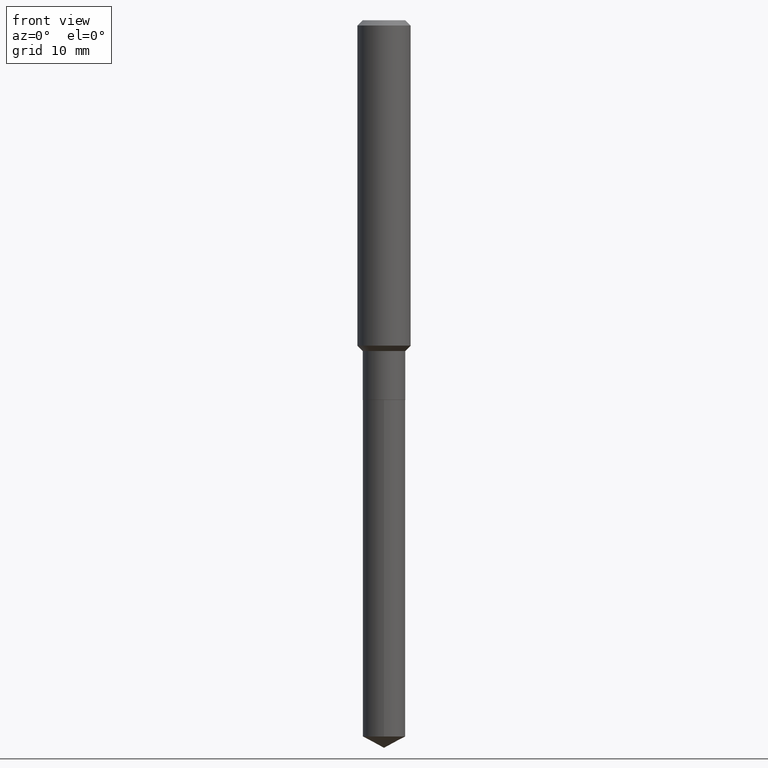
[diagram: clean part render]
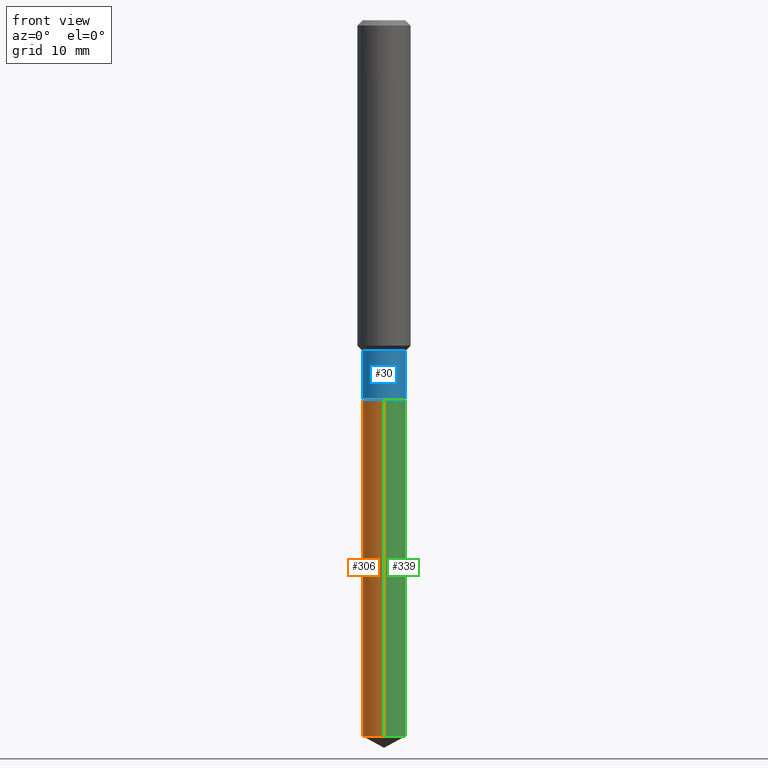
[diagram: same view with three faces highlighted in distinct colors, each labeled with its STEP entity id]
A machine part, front view with three faces highlighted in distinct colors.
Their STEP definitions:

[orange] entity #306 — the highlighted cylindrical surface (edge-blend (fillet) strip) has radius 2.4003 mm, axis along (-0, 0, 1).
#9 = ORIENTED_EDGE ( 'NONE', *, *, #201, .F. ) ;
#18 = VECTOR ( 'NONE', #355, 39.37007874015748143 ) ;
#28 = CARTESIAN_POINT ( 'NONE',  ( 7.771783973672636712E-29, -1.109618111312725859E-14, -3.178053458707990497 ) ) ;
#36 = EDGE_LOOP ( 'NONE', ( #9, #342, #344, #387 ) ) ;
#63 = EDGE_CURVE ( 'NONE', #81, #406, #270, .T. ) ;
#68 = CARTESIAN_POINT ( 'NONE',  ( 4.120614938421955681E-29, -5.883146055950701318E-15, -1.685000000000000275 ) ) ;
#81 = VERTEX_POINT ( 'NONE', #485 ) ;
#110 = VERTEX_POINT ( 'NONE', #254 ) ;
#121 = CARTESIAN_POINT ( 'NONE',  ( -6.598899730413107968E-16, -0.09450000000000588485, -1.684999999999999831 ) ) ;
#128 = AXIS2_PLACEMENT_3D ( 'NONE', #417, #297, #188 ) ;
#142 = FACE_OUTER_BOUND ( 'NONE', #36, .T. ) ;
#178 = EDGE_CURVE ( 'NONE', #308, #406, #242, .T. ) ;
#188 = DIRECTION ( 'NONE',  ( -6.982962677686265922E-15, -1.000000000000000000, 2.890844437739961472E-15 ) ) ;
#193 = DIRECTION ( 'NONE',  ( -2.445437578913088884E-29, 3.491526058074064807E-15, 1.000000000000000000 ) ) ;
#201 = EDGE_CURVE ( 'NONE', #110, #81, #478, .T. ) ;
#205 = CIRCLE ( 'NONE', #225, 0.09449999999999998679 ) ;
#214 = DIRECTION ( 'NONE',  ( -6.982962677686265922E-15, -1.000000000000000000, 2.890844437739961472E-15 ) ) ;
#221 = CARTESIAN_POINT ( 'NONE',  ( -6.598899730413107968E-16, -0.09450000000000588485, -1.684999999999999831 ) ) ;
#225 = AXIS2_PLACEMENT_3D ( 'NONE', #28, #292, #253 ) ;
#242 = LINE ( 'NONE', #121, #346 ) ;
#253 = DIRECTION ( 'NONE',  ( -6.982962677686265922E-15, -1.000000000000000000, 5.781688875479922944E-15 ) ) ;
#254 = CARTESIAN_POINT ( 'NONE',  ( 6.714628852933723832E-16, 0.09449999999998892619, -3.178053458707990941 ) ) ;
#268 = EDGE_CURVE ( 'NONE', #110, #308, #205, .T. ) ;
#270 = CIRCLE ( 'NONE', #455, 0.09449999999999998679 ) ;
#292 = DIRECTION ( 'NONE',  ( -2.445437578913088603E-29, 3.491526058074064413E-15, 1.000000000000000000 ) ) ;
#297 = DIRECTION ( 'NONE',  ( -2.445437578913088603E-29, 3.491526058074064413E-15, 1.000000000000000000 ) ) ;
#299 = DIRECTION ( 'NONE',  ( -2.445437578913088603E-29, 3.491526058074064413E-15, 1.000000000000000000 ) ) ;
#306 = ADVANCED_FACE ( 'NONE', ( #142 ), #373, .T. ) ;
#308 = VERTEX_POINT ( 'NONE', #407 ) ;
#342 = ORIENTED_EDGE ( 'NONE', *, *, #268, .T. ) ;
#344 = ORIENTED_EDGE ( 'NONE', *, *, #178, .T. ) ;
#346 = VECTOR ( 'NONE', #193, 39.37007874015748143 ) ;
#355 = DIRECTION ( 'NONE',  ( -2.445437578913088884E-29, 3.491526058074064807E-15, 1.000000000000000000 ) ) ;
#373 = CYLINDRICAL_SURFACE ( 'NONE', #128, 0.09449999999999998679 ) ;
#387 = ORIENTED_EDGE ( 'NONE', *, *, #63, .F. ) ;
#406 = VERTEX_POINT ( 'NONE', #221 ) ;
#407 = CARTESIAN_POINT ( 'NONE',  ( -6.598899730412745092E-16, -0.09450000000001110290, -3.178053458707990053 ) ) ;
#417 = CARTESIAN_POINT ( 'NONE',  ( 4.120614938421955681E-29, -5.883146055950701318E-15, -1.685000000000000275 ) ) ;
#436 = CARTESIAN_POINT ( 'NONE',  ( 6.714628852933357011E-16, 0.09449999999999410261, -1.685000000000000497 ) ) ;
#455 = AXIS2_PLACEMENT_3D ( 'NONE', #68, #299, #214 ) ;
#478 = LINE ( 'NONE', #436, #18 ) ;
#485 = CARTESIAN_POINT ( 'NONE',  ( 6.714628852933723832E-16, 0.09449999999999410261, -1.685000000000000497 ) ) ;

[blue] entity #30 — the highlighted cylindrical surface (edge-blend (fillet) strip) has radius 2.4003 mm, axis along (-0, 0, 1).
#21 = FACE_OUTER_BOUND ( 'NONE', #471, .T. ) ;
#30 = ADVANCED_FACE ( 'NONE', ( #21 ), #243, .T. ) ;
#73 = CARTESIAN_POINT ( 'NONE',  ( -0.09449999999999998679, -4.831286278790446219E-15, -1.684500000000000330 ) ) ;
#78 = VERTEX_POINT ( 'NONE', #73 ) ;
#97 = CARTESIAN_POINT ( 'NONE',  ( 0.09449999999999995903, -5.783987985927553605E-15, -1.467600000000000238 ) ) ;
#104 = EDGE_CURVE ( 'NONE', #314, #234, #204, .T. ) ;
#105 = CARTESIAN_POINT ( 'NONE',  ( -0.09449999999999995903, -4.831286278790446219E-15, -1.467600000000000238 ) ) ;
#111 = CARTESIAN_POINT ( 'NONE',  ( -0.09449999999999997291, 6.714628852932944832E-16, -4.648393660290884930E-30 ) ) ;
#117 = VECTOR ( 'NONE', #148, 39.37007874015748143 ) ;
#148 = DIRECTION ( 'NONE',  ( -2.445468806185136877E-29, 3.491481338843145188E-15, 1.000000000000000000 ) ) ;
#154 = DIRECTION ( 'NONE',  ( 1.000000000000000000, -6.982962677686266711E-15, 0.000000000000000000 ) ) ;
#165 = CARTESIAN_POINT ( 'NONE',  ( 0.000000000000000000, 0.000000000000000000, 0.000000000000000000 ) ) ;
#183 = DIRECTION ( 'NONE',  ( -2.445468806185136877E-29, 3.491481338843145188E-15, 1.000000000000000000 ) ) ;
#204 = CIRCLE ( 'NONE', #354, 0.09449999999999995903 ) ;
#209 = CARTESIAN_POINT ( 'NONE',  ( 3.588970019957307278E-29, -5.124098012886201590E-15, -1.467600000000000238 ) ) ;
#211 = DIRECTION ( 'NONE',  ( 1.000000000000000000, -6.982962677686266711E-15, 4.876176775795935793E-29 ) ) ;
#213 = LINE ( 'NONE', #489, #117 ) ;
#220 = CARTESIAN_POINT ( 'NONE',  ( 0.09449999999999998679, -6.541290288322631830E-15, -1.684500000000000330 ) ) ;
#226 = ORIENTED_EDGE ( 'NONE', *, *, #374, .T. ) ;
#234 = VERTEX_POINT ( 'NONE', #97 ) ;
#235 = CARTESIAN_POINT ( 'NONE',  ( 4.119392204018863440E-29, -5.881400315281279815E-15, -1.684500000000000330 ) ) ;
#243 = CYLINDRICAL_SURFACE ( 'NONE', #484, 0.09449999999999997291 ) ;
#256 = CIRCLE ( 'NONE', #303, 0.09449999999999998679 ) ;
#273 = ORIENTED_EDGE ( 'NONE', *, *, #402, .F. ) ;
#281 = DIRECTION ( 'NONE',  ( -2.445468806185136597E-29, 3.491481338843145583E-15, 1.000000000000000000 ) ) ;
#303 = AXIS2_PLACEMENT_3D ( 'NONE', #235, #281, #154 ) ;
#314 = VERTEX_POINT ( 'NONE', #105 ) ;
#319 = VERTEX_POINT ( 'NONE', #220 ) ;
#343 = ORIENTED_EDGE ( 'NONE', *, *, #104, .F. ) ;
#354 = AXIS2_PLACEMENT_3D ( 'NONE', #209, #479, #440 ) ;
#374 = EDGE_CURVE ( 'NONE', #319, #234, #213, .T. ) ;
#402 = EDGE_CURVE ( 'NONE', #78, #314, #450, .T. ) ;
#425 = ORIENTED_EDGE ( 'NONE', *, *, #473, .T. ) ;
#440 = DIRECTION ( 'NONE',  ( 1.000000000000000000, -6.982962677686269077E-15, 0.000000000000000000 ) ) ;
#449 = VECTOR ( 'NONE', #183, 39.37007874015748143 ) ;
#450 = LINE ( 'NONE', #111, #449 ) ;
#462 = DIRECTION ( 'NONE',  ( -2.445468806185136597E-29, 3.491481338843145583E-15, 1.000000000000000000 ) ) ;
#471 = EDGE_LOOP ( 'NONE', ( #273, #425, #226, #343 ) ) ;
#473 = EDGE_CURVE ( 'NONE', #78, #319, #256, .T. ) ;
#479 = DIRECTION ( 'NONE',  ( -2.445468806185136597E-29, 3.491481338843145583E-15, 1.000000000000000000 ) ) ;
#484 = AXIS2_PLACEMENT_3D ( 'NONE', #165, #462, #211 ) ;
#489 = CARTESIAN_POINT ( 'NONE',  ( 0.09449999999999997291, -6.598899730413520148E-16, 4.607987053127158259E-30 ) ) ;

[green] entity #339 — the highlighted cylindrical surface (edge-blend (fillet) strip) has radius 2.4003 mm, axis along (-0, 0, 1).
#10 = ORIENTED_EDGE ( 'NONE', *, *, #124, .F. ) ;
#18 = VECTOR ( 'NONE', #355, 39.37007874015748143 ) ;
#27 = CIRCLE ( 'NONE', #246, 0.09449999999999998679 ) ;
#32 = DIRECTION ( 'NONE',  ( -2.445437578913088603E-29, 3.491526058074064413E-15, 1.000000000000000000 ) ) ;
#58 = CIRCLE ( 'NONE', #490, 0.09449999999999998679 ) ;
#81 = VERTEX_POINT ( 'NONE', #485 ) ;
#84 = CARTESIAN_POINT ( 'NONE',  ( 7.771783973672636712E-29, -1.109618111312725859E-14, -3.178053458707990497 ) ) ;
#110 = VERTEX_POINT ( 'NONE', #254 ) ;
#121 = CARTESIAN_POINT ( 'NONE',  ( -6.598899730413107968E-16, -0.09450000000000588485, -1.684999999999999831 ) ) ;
#124 = EDGE_CURVE ( 'NONE', #406, #81, #27, .T. ) ;
#143 = EDGE_CURVE ( 'NONE', #308, #110, #58, .T. ) ;
#156 = ORIENTED_EDGE ( 'NONE', *, *, #178, .F. ) ;
#164 = DIRECTION ( 'NONE',  ( -6.982962677686265922E-15, -1.000000000000000000, 2.890844437739961472E-15 ) ) ;
#178 = EDGE_CURVE ( 'NONE', #308, #406, #242, .T. ) ;
#186 = CARTESIAN_POINT ( 'NONE',  ( 4.120614938421955681E-29, -5.883146055950701318E-15, -1.685000000000000275 ) ) ;
#193 = DIRECTION ( 'NONE',  ( -2.445437578913088884E-29, 3.491526058074064807E-15, 1.000000000000000000 ) ) ;
#201 = EDGE_CURVE ( 'NONE', #110, #81, #478, .T. ) ;
#216 = CYLINDRICAL_SURFACE ( 'NONE', #377, 0.09449999999999998679 ) ;
#221 = CARTESIAN_POINT ( 'NONE',  ( -6.598899730413107968E-16, -0.09450000000000588485, -1.684999999999999831 ) ) ;
#232 = DIRECTION ( 'NONE',  ( -6.982962677686265922E-15, -1.000000000000000000, 5.781688875479922944E-15 ) ) ;
#236 = DIRECTION ( 'NONE',  ( -2.445437578913088603E-29, 3.491526058074064413E-15, 1.000000000000000000 ) ) ;
#242 = LINE ( 'NONE', #121, #346 ) ;
#246 = AXIS2_PLACEMENT_3D ( 'NONE', #362, #32, #164 ) ;
#254 = CARTESIAN_POINT ( 'NONE',  ( 6.714628852933723832E-16, 0.09449999999998892619, -3.178053458707990941 ) ) ;
#269 = ORIENTED_EDGE ( 'NONE', *, *, #143, .T. ) ;
#280 = EDGE_LOOP ( 'NONE', ( #269, #300, #10, #156 ) ) ;
#300 = ORIENTED_EDGE ( 'NONE', *, *, #201, .T. ) ;
#301 = FACE_OUTER_BOUND ( 'NONE', #280, .T. ) ;
#308 = VERTEX_POINT ( 'NONE', #407 ) ;
#329 = DIRECTION ( 'NONE',  ( -6.982962677686265922E-15, -1.000000000000000000, 2.890844437739961472E-15 ) ) ;
#339 = ADVANCED_FACE ( 'NONE', ( #301 ), #216, .T. ) ;
#346 = VECTOR ( 'NONE', #193, 39.37007874015748143 ) ;
#355 = DIRECTION ( 'NONE',  ( -2.445437578913088884E-29, 3.491526058074064807E-15, 1.000000000000000000 ) ) ;
#362 = CARTESIAN_POINT ( 'NONE',  ( 4.120614938421955681E-29, -5.883146055950701318E-15, -1.685000000000000275 ) ) ;
#375 = DIRECTION ( 'NONE',  ( -2.445437578913088603E-29, 3.491526058074064413E-15, 1.000000000000000000 ) ) ;
#377 = AXIS2_PLACEMENT_3D ( 'NONE', #186, #375, #329 ) ;
#406 = VERTEX_POINT ( 'NONE', #221 ) ;
#407 = CARTESIAN_POINT ( 'NONE',  ( -6.598899730412745092E-16, -0.09450000000001110290, -3.178053458707990053 ) ) ;
#436 = CARTESIAN_POINT ( 'NONE',  ( 6.714628852933357011E-16, 0.09449999999999410261, -1.685000000000000497 ) ) ;
#478 = LINE ( 'NONE', #436, #18 ) ;
#485 = CARTESIAN_POINT ( 'NONE',  ( 6.714628852933723832E-16, 0.09449999999999410261, -1.685000000000000497 ) ) ;
#490 = AXIS2_PLACEMENT_3D ( 'NONE', #84, #236, #232 ) ;